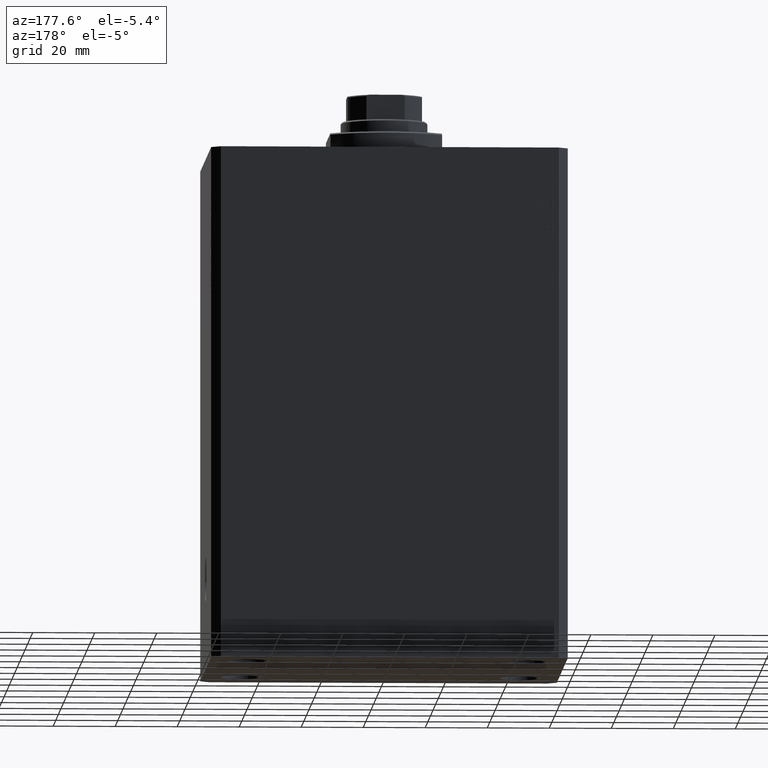
[diagram: clean part render]
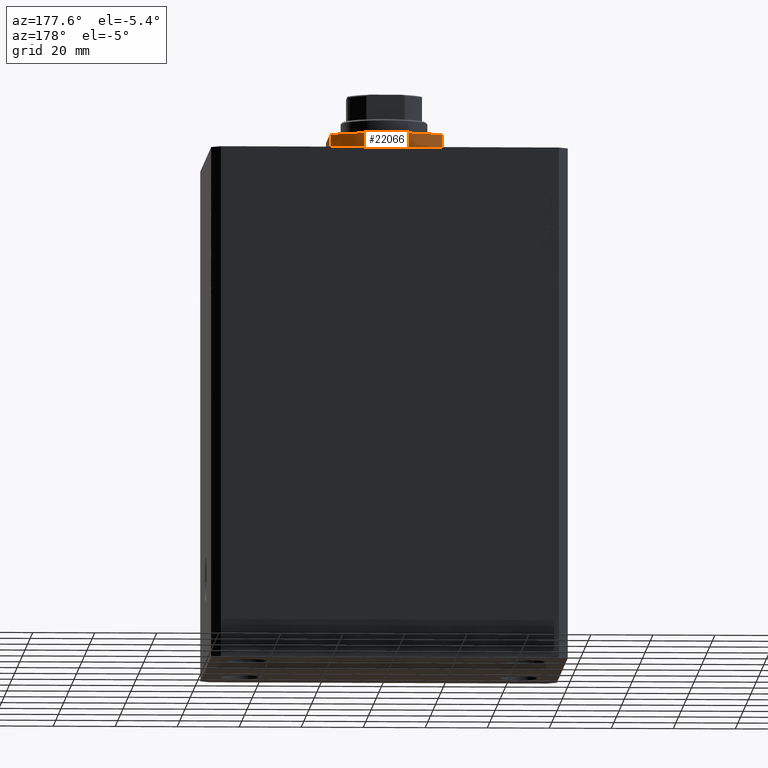
[diagram: same view with one face highlighted and labeled with its STEP entity id]
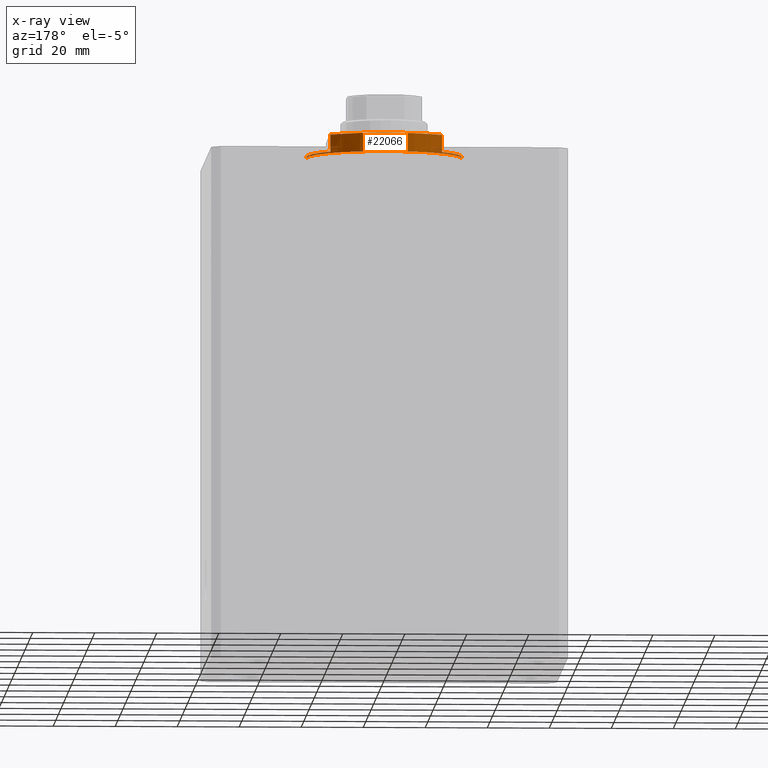
[diagram: x-ray of the same camera — body ghosted, the highlighted face saturated]
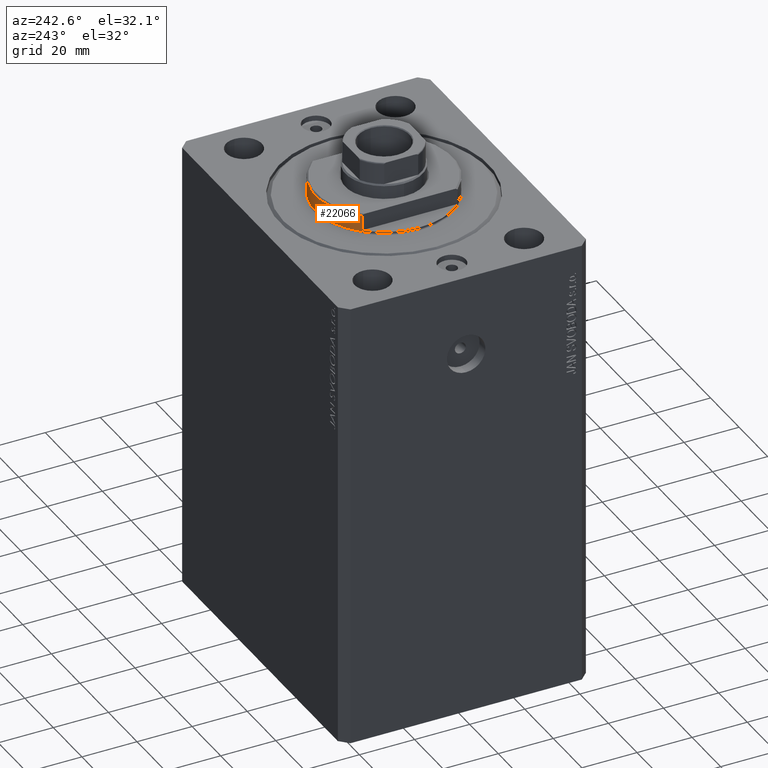
[diagram: same view with one face highlighted and labeled with its STEP entity id]
A machine part, auxiliary view. The second image highlights one B-rep face of the part: STEP entity #22066.
The next image is the same camera in x-ray: the body ghosted, the highlighted face saturated — about 7% of this face is hidden behind the body in this view.
A second angle (auxiliary view) of the same face is appended — the face is thin or edge-on in the first view.
In plain terms, the highlighted cylindrical surface (partial cylindrical patch) has radius 25 mm, axis along (0, 0, -1).
Its self-contained STEP definition (entity closure, byte-faithful):
#1876 = AXIS2_PLACEMENT_3D ( 'NONE', #5889, #19614, #30600 ) ;
#1946 = CARTESIAN_POINT ( 'NONE',  ( 18.00000000000000000, 17.34935157289748986, -6.499999999999965361 ) ) ;
#2613 = VECTOR ( 'NONE', #20258, 1000.000000000000000 ) ;
#3004 = CARTESIAN_POINT ( 'NONE',  ( 18.00000000000000000, 17.34935157289747920, -1.000000000000000000 ) ) ;
#3116 = DIRECTION ( 'NONE',  ( -1.000000000000000000, 0.000000000000000000, 0.000000000000000000 ) ) ;
#3581 = ORIENTED_EDGE ( 'NONE', *, *, #37585, .T. ) ;
#3840 = DIRECTION ( 'NONE',  ( -0.000000000000000000, -0.000000000000000000, -1.000000000000000000 ) ) ;
#4423 = CARTESIAN_POINT ( 'NONE',  ( -18.00000000000000000, 17.34935157289747920, -1.000000000000000000 ) ) ;
#4991 = EDGE_CURVE ( 'NONE', #15917, #35161, #15345, .T. ) ;
#5889 = CARTESIAN_POINT ( 'NONE',  ( 0.000000000000000000, 0.000000000000000000, -6.499999999999958256 ) ) ;
#6025 = DIRECTION ( 'NONE',  ( -0.000000000000000000, -0.000000000000000000, 1.000000000000000000 ) ) ;
#7304 = ORIENTED_EDGE ( 'NONE', *, *, #41482, .T. ) ;
#7362 = VECTOR ( 'NONE', #41210, 1000.000000000000000 ) ;
#8387 = DIRECTION ( 'NONE',  ( -0.000000000000000000, -0.000000000000000000, 1.000000000000000000 ) ) ;
#8580 = EDGE_CURVE ( 'NONE', #35161, #41979, #28426, .T. ) ;
#8891 = AXIS2_PLACEMENT_3D ( 'NONE', #34269, #20336, #17193 ) ;
#9900 = VECTOR ( 'NONE', #6025, 1000.000000000000000 ) ;
#10670 = CARTESIAN_POINT ( 'NONE',  ( 25.00000000000000000, 0.000000000000000000, -1.000000000000000000 ) ) ;
#12248 = CARTESIAN_POINT ( 'NONE',  ( 25.00000000000000000, 0.000000000000000000, -0.4999999999999995559 ) ) ;
#13329 = VERTEX_POINT ( 'NONE', #42680 ) ;
#15345 = CIRCLE ( 'NONE', #8891, 25.00000000000000000 ) ;
#15375 = CARTESIAN_POINT ( 'NONE',  ( 25.00000000000000000, 0.000000000000000000, -7.000000000000000000 ) ) ;
#15917 = VERTEX_POINT ( 'NONE', #3004 ) ;
#16196 = AXIS2_PLACEMENT_3D ( 'NONE', #41142, #3840, #37336 ) ;
#16411 = DIRECTION ( 'NONE',  ( 0.000000000000000000, 0.000000000000000000, -1.000000000000000000 ) ) ;
#17193 = DIRECTION ( 'NONE',  ( -1.000000000000000000, 0.000000000000000000, 0.000000000000000000 ) ) ;
#17329 = CARTESIAN_POINT ( 'NONE',  ( -18.00000000000000000, 17.34935157289747920, -7.000000000000000000 ) ) ;
#19592 = CARTESIAN_POINT ( 'NONE',  ( -25.00000000000000000, 3.061616997868383043E-15, -0.4999999999999995559 ) ) ;
#19614 = DIRECTION ( 'NONE',  ( 0.000000000000000000, 0.000000000000000000, 1.000000000000000000 ) ) ;
#20258 = DIRECTION ( 'NONE',  ( -0.000000000000000000, -0.000000000000000000, 1.000000000000000000 ) ) ;
#20336 = DIRECTION ( 'NONE',  ( 0.000000000000000000, 0.000000000000000000, -1.000000000000000000 ) ) ;
#22066 = ADVANCED_FACE ( 'NONE', ( #29286 ), #31996, .T. ) ;
#22442 = VERTEX_POINT ( 'NONE', #1946 ) ;
#22951 = EDGE_CURVE ( 'NONE', #22442, #15917, #31110, .T. ) ;
#23113 = LINE ( 'NONE', #35780, #9900 ) ;
#23383 = CIRCLE ( 'NONE', #34874, 25.00000000000000000 ) ;
#24147 = CIRCLE ( 'NONE', #1876, 25.00000000000000000 ) ;
#24782 = CIRCLE ( 'NONE', #16196, 25.00000000000000000 ) ;
#27687 = VERTEX_POINT ( 'NONE', #19592 ) ;
#28181 = CARTESIAN_POINT ( 'NONE',  ( 18.00000000000000000, 17.34935157289747920, -7.000000000000000000 ) ) ;
#28196 = ORIENTED_EDGE ( 'NONE', *, *, #4991, .F. ) ;
#28426 = LINE ( 'NONE', #15375, #35486 ) ;
#28625 = DIRECTION ( 'NONE',  ( 1.000000000000000000, 0.000000000000000000, 0.000000000000000000 ) ) ;
#29286 = FACE_OUTER_BOUND ( 'NONE', #41829, .T. ) ;
#30030 = EDGE_CURVE ( 'NONE', #13329, #40822, #23383, .T. ) ;
#30600 = DIRECTION ( 'NONE',  ( -1.000000000000000000, 0.000000000000000000, 0.000000000000000000 ) ) ;
#30834 = ORIENTED_EDGE ( 'NONE', *, *, #8580, .F. ) ;
#31010 = CARTESIAN_POINT ( 'NONE',  ( -18.00000000000000000, 17.34935157289748986, -6.499999999999965361 ) ) ;
#31110 = LINE ( 'NONE', #28181, #7362 ) ;
#31996 = CYLINDRICAL_SURFACE ( 'NONE', #40876, 25.00000000000000000 ) ;
#33278 = EDGE_CURVE ( 'NONE', #40229, #40822, #34414, .T. ) ;
#34157 = EDGE_CURVE ( 'NONE', #27687, #41979, #24782, .T. ) ;
#34269 = CARTESIAN_POINT ( 'NONE',  ( 0.000000000000000000, 0.000000000000000000, -1.000000000000000000 ) ) ;
#34414 = LINE ( 'NONE', #17329, #2613 ) ;
#34874 = AXIS2_PLACEMENT_3D ( 'NONE', #37507, #16411, #3116 ) ;
#35161 = VERTEX_POINT ( 'NONE', #10670 ) ;
#35371 = ORIENTED_EDGE ( 'NONE', *, *, #30030, .F. ) ;
#35486 = VECTOR ( 'NONE', #42125, 1000.000000000000000 ) ;
#35780 = CARTESIAN_POINT ( 'NONE',  ( -25.00000000000000000, 3.061616997868383043E-15, -7.000000000000000000 ) ) ;
#35803 = CARTESIAN_POINT ( 'NONE',  ( 0.000000000000000000, 0.000000000000000000, -7.000000000000000000 ) ) ;
#37336 = DIRECTION ( 'NONE',  ( 1.000000000000000000, 0.000000000000000000, 0.000000000000000000 ) ) ;
#37507 = CARTESIAN_POINT ( 'NONE',  ( 0.000000000000000000, 0.000000000000000000, -1.000000000000000000 ) ) ;
#37585 = EDGE_CURVE ( 'NONE', #22442, #40229, #24147, .T. ) ;
#38064 = ORIENTED_EDGE ( 'NONE', *, *, #34157, .T. ) ;
#39533 = ORIENTED_EDGE ( 'NONE', *, *, #22951, .F. ) ;
#40229 = VERTEX_POINT ( 'NONE', #31010 ) ;
#40822 = VERTEX_POINT ( 'NONE', #4423 ) ;
#40876 = AXIS2_PLACEMENT_3D ( 'NONE', #35803, #8387, #28625 ) ;
#41142 = CARTESIAN_POINT ( 'NONE',  ( 0.000000000000000000, 0.000000000000000000, -0.4999999999999995559 ) ) ;
#41210 = DIRECTION ( 'NONE',  ( -0.000000000000000000, -0.000000000000000000, 1.000000000000000000 ) ) ;
#41482 = EDGE_CURVE ( 'NONE', #13329, #27687, #23113, .T. ) ;
#41829 = EDGE_LOOP ( 'NONE', ( #35371, #7304, #38064, #30834, #28196, #39533, #3581, #44440 ) ) ;
#41979 = VERTEX_POINT ( 'NONE', #12248 ) ;
#42125 = DIRECTION ( 'NONE',  ( -0.000000000000000000, -0.000000000000000000, 1.000000000000000000 ) ) ;
#42680 = CARTESIAN_POINT ( 'NONE',  ( -25.00000000000000000, 3.061616997868383043E-15, -1.000000000000000000 ) ) ;
#44440 = ORIENTED_EDGE ( 'NONE', *, *, #33278, .T. ) ;